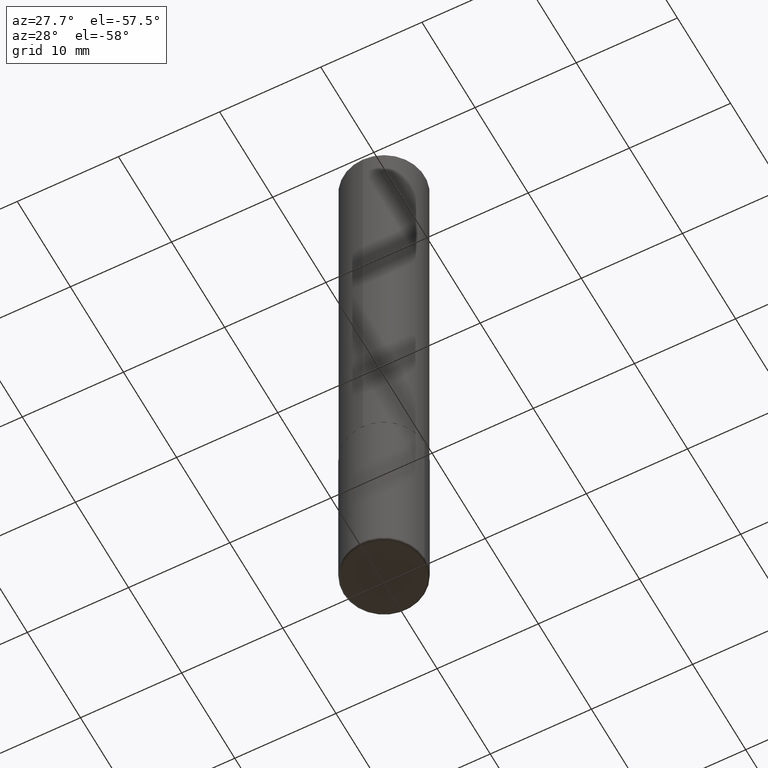
[diagram: clean part render]
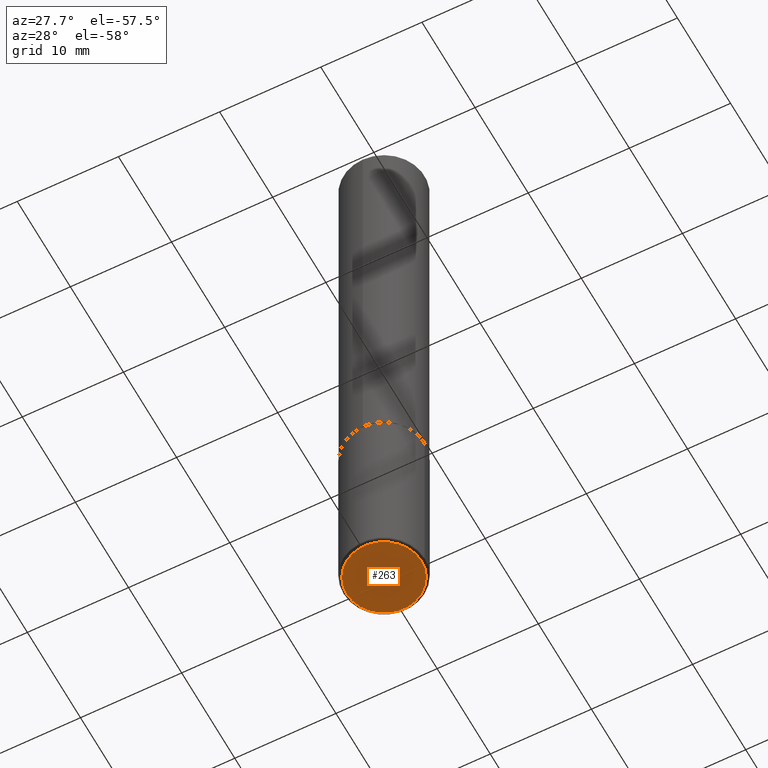
[diagram: same view with one face highlighted and labeled with its STEP entity id]
A machine part, auxiliary view. The second image highlights one B-rep face of the part: STEP entity #263.
In plain terms, the highlighted planar face has unit normal (0, -0, -1).
Its self-contained STEP definition (entity closure, byte-faithful):
#8 = VERTEX_POINT ( 'NONE', #91 ) ;
#22 = ORIENTED_EDGE ( 'NONE', *, *, #284, .F. ) ;
#61 = CARTESIAN_POINT ( 'NONE',  ( 6.065496279980994755E-29, -8.659921164732655335E-15, -2.480300000000000171 ) ) ;
#65 = CIRCLE ( 'NONE', #233, 0.1456999999999999684 ) ;
#67 = DIRECTION ( 'NONE',  ( 1.000000000000000000, -6.982962677686267499E-15, 0.000000000000000000 ) ) ;
#91 = CARTESIAN_POINT ( 'NONE',  ( -0.1456999999999999684, -7.562138637421167650E-15, -2.480300000000000171 ) ) ;
#94 = VERTEX_POINT ( 'NONE', #158 ) ;
#103 = AXIS2_PLACEMENT_3D ( 'NONE', #383, #224, #325 ) ;
#158 = CARTESIAN_POINT ( 'NONE',  ( 0.1456999999999999684, -9.677338826871543903E-15, -2.480300000000000171 ) ) ;
#185 = ORIENTED_EDGE ( 'NONE', *, *, #198, .F. ) ;
#187 = DIRECTION ( 'NONE',  ( 2.438088387897960049E-29, -3.491481338843145188E-15, -1.000000000000000000 ) ) ;
#198 = EDGE_CURVE ( 'NONE', #8, #94, #65, .T. ) ;
#221 = FACE_OUTER_BOUND ( 'NONE', #373, .T. ) ;
#224 = DIRECTION ( 'NONE',  ( -2.445468806185136597E-29, 3.491481338843145583E-15, 1.000000000000000000 ) ) ;
#228 = DIRECTION ( 'NONE',  ( -2.445468806185136597E-29, 3.491481338843145583E-15, 1.000000000000000000 ) ) ;
#233 = AXIS2_PLACEMENT_3D ( 'NONE', #390, #228, #67 ) ;
#263 = ADVANCED_FACE ( 'NONE', ( #221 ), #347, .T. ) ;
#274 = CIRCLE ( 'NONE', #103, 0.1456999999999999684 ) ;
#284 = EDGE_CURVE ( 'NONE', #94, #8, #274, .T. ) ;
#318 = DIRECTION ( 'NONE',  ( -1.000000000000000000, 6.982962677686265922E-15, -4.876176775795935793E-29 ) ) ;
#325 = DIRECTION ( 'NONE',  ( 1.000000000000000000, -6.982962677686267499E-15, 0.000000000000000000 ) ) ;
#347 = PLANE ( 'NONE',  #350 ) ;
#350 = AXIS2_PLACEMENT_3D ( 'NONE', #61, #187, #318 ) ;
#373 = EDGE_LOOP ( 'NONE', ( #22, #185 ) ) ;
#383 = CARTESIAN_POINT ( 'NONE',  ( 6.065496279980994755E-29, -8.659921164732655335E-15, -2.480300000000000171 ) ) ;
#390 = CARTESIAN_POINT ( 'NONE',  ( 6.065496279980994755E-29, -8.659921164732655335E-15, -2.480300000000000171 ) ) ;